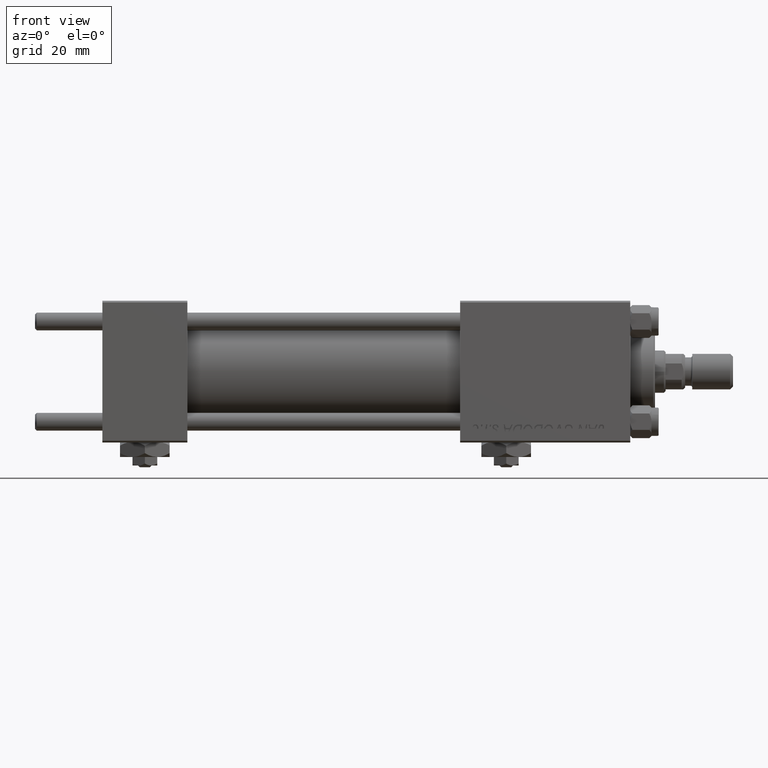
[diagram: clean part render]
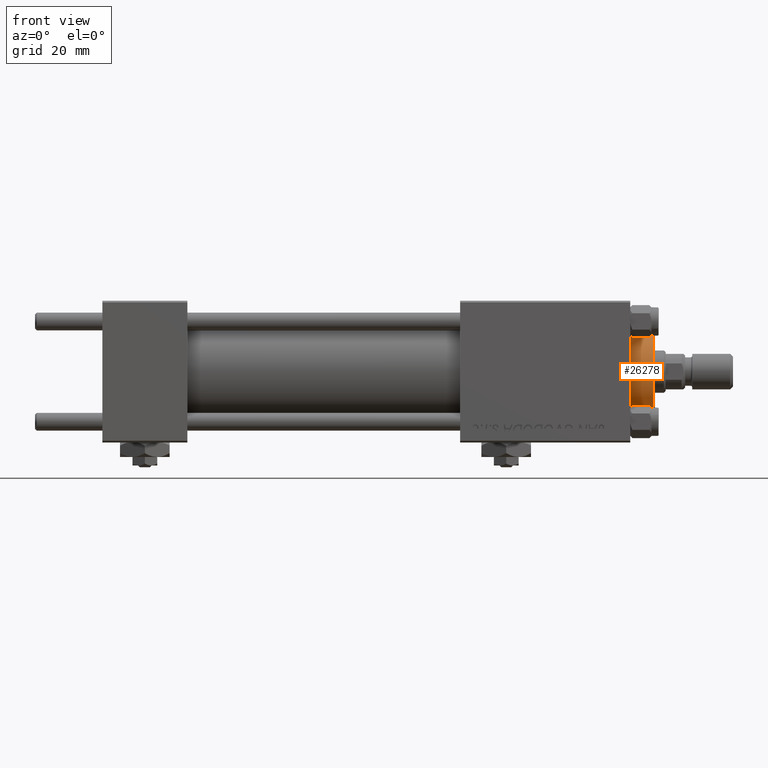
[diagram: same view with one face highlighted and labeled with its STEP entity id]
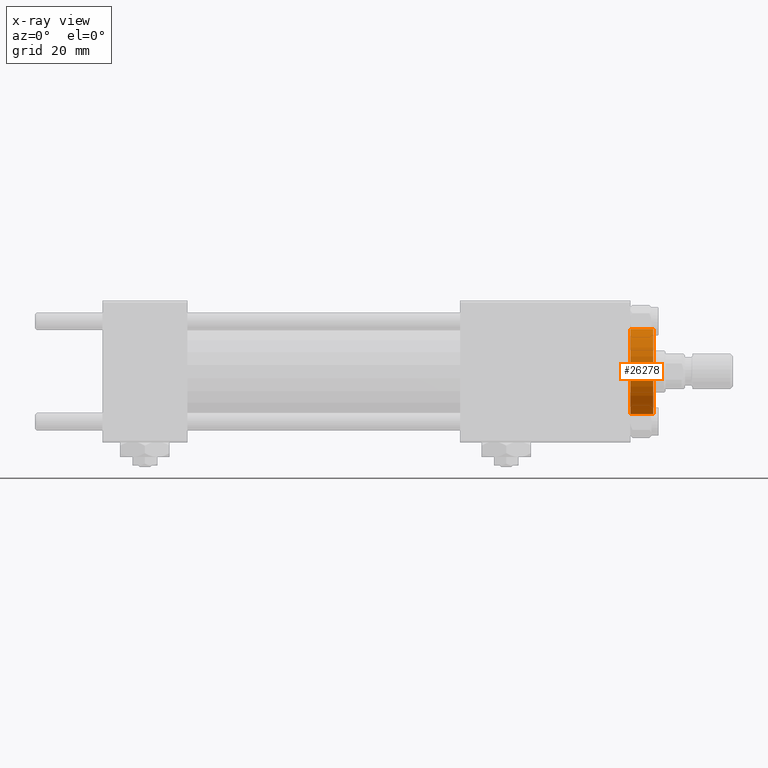
[diagram: x-ray of the same camera — body ghosted, the highlighted face saturated]
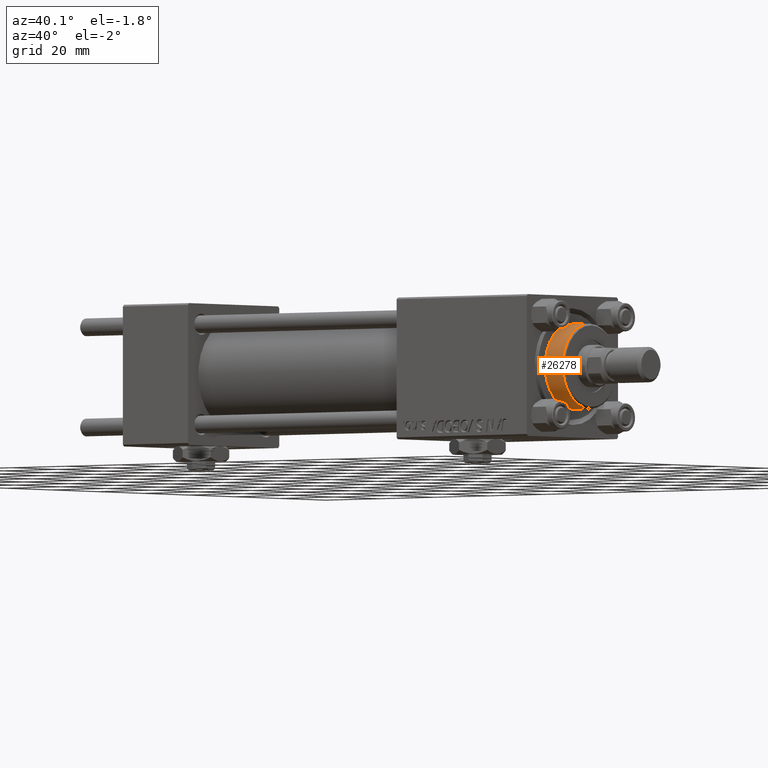
[diagram: same view with one face highlighted and labeled with its STEP entity id]
A machine part, front view. The second image highlights one B-rep face of the part: STEP entity #26278.
The next image is the same camera in x-ray: the body ghosted, the highlighted face saturated — about 0% of this face is hidden behind the body in this view.
A second angle (auxiliary view) of the same face is appended — the face is thin or edge-on in the first view.
In plain terms, the highlighted cylindrical surface (partial cylindrical patch) has radius 12 mm, axis along (-1, -0, 0).
Its self-contained STEP definition (entity closure, byte-faithful):
#1590 = CARTESIAN_POINT ( 'NONE',  ( 0.000000000000000000, 0.000000000000000000, 35.19999999999999574 ) ) ;
#2120 = VERTEX_POINT ( 'NONE', #27552 ) ;
#4047 = DIRECTION ( 'NONE',  ( 1.000000000000000000, 0.000000000000000000, 0.000000000000000000 ) ) ;
#5297 = DIRECTION ( 'NONE',  ( 0.000000000000000000, 0.000000000000000000, -1.000000000000000000 ) ) ;
#5388 = DIRECTION ( 'NONE',  ( -1.000000000000000000, 0.000000000000000000, 0.000000000000000000 ) ) ;
#6075 = DIRECTION ( 'NONE',  ( 1.000000000000000000, 0.000000000000000000, 0.000000000000000000 ) ) ;
#6816 = VECTOR ( 'NONE', #47440, 1000.000000000000000 ) ;
#7691 = AXIS2_PLACEMENT_3D ( 'NONE', #32569, #15929, #4047 ) ;
#9608 = AXIS2_PLACEMENT_3D ( 'NONE', #28912, #49510, #5388 ) ;
#10419 = DIRECTION ( 'NONE',  ( -0.000000000000000000, -0.000000000000000000, -1.000000000000000000 ) ) ;
#13827 = ORIENTED_EDGE ( 'NONE', *, *, #46648, .T. ) ;
#13930 = VERTEX_POINT ( 'NONE', #21464 ) ;
#14297 = EDGE_CURVE ( 'NONE', #24934, #13930, #28018, .T. ) ;
#15929 = DIRECTION ( 'NONE',  ( 0.000000000000000000, 0.000000000000000000, 1.000000000000000000 ) ) ;
#16232 = ORIENTED_EDGE ( 'NONE', *, *, #41120, .T. ) ;
#21236 = FACE_OUTER_BOUND ( 'NONE', #49833, .T. ) ;
#21464 = CARTESIAN_POINT ( 'NONE',  ( -12.00000000000000178, 0.000000000000000000, 35.19999999999999574 ) ) ;
#24092 = CARTESIAN_POINT ( 'NONE',  ( -12.00000000000000178, 0.000000000000000000, 28.69999999999999929 ) ) ;
#24934 = VERTEX_POINT ( 'NONE', #40659 ) ;
#26278 = ADVANCED_FACE ( 'NONE', ( #21236 ), #29422, .T. ) ;
#27062 = CIRCLE ( 'NONE', #7691, 12.00000000000000178 ) ;
#27092 = CARTESIAN_POINT ( 'NONE',  ( 12.00000000000000178, 1.469576158976824144E-15, 35.70000000000000284 ) ) ;
#27552 = CARTESIAN_POINT ( 'NONE',  ( 12.00000000000000178, 1.469576158976824144E-15, 28.69999999999999929 ) ) ;
#28018 = CIRCLE ( 'NONE', #37277, 12.00000000000000178 ) ;
#28568 = VECTOR ( 'NONE', #10419, 1000.000000000000000 ) ;
#28912 = CARTESIAN_POINT ( 'NONE',  ( 0.000000000000000000, 0.000000000000000000, 35.70000000000000284 ) ) ;
#29422 = CYLINDRICAL_SURFACE ( 'NONE', #9608, 12.00000000000000178 ) ;
#30490 = CARTESIAN_POINT ( 'NONE',  ( -12.00000000000000178, 0.000000000000000000, 35.70000000000000284 ) ) ;
#31969 = ORIENTED_EDGE ( 'NONE', *, *, #45914, .F. ) ;
#32569 = CARTESIAN_POINT ( 'NONE',  ( 0.000000000000000000, 0.000000000000000000, 28.69999999999999929 ) ) ;
#33564 = VERTEX_POINT ( 'NONE', #24092 ) ;
#35009 = ORIENTED_EDGE ( 'NONE', *, *, #14297, .T. ) ;
#37277 = AXIS2_PLACEMENT_3D ( 'NONE', #1590, #5297, #6075 ) ;
#40659 = CARTESIAN_POINT ( 'NONE',  ( 12.00000000000000178, 1.469576158976824144E-15, 35.19999999999999574 ) ) ;
#41120 = EDGE_CURVE ( 'NONE', #13930, #33564, #42900, .T. ) ;
#42900 = LINE ( 'NONE', #30490, #28568 ) ;
#45914 = EDGE_CURVE ( 'NONE', #24934, #2120, #45922, .T. ) ;
#45922 = LINE ( 'NONE', #27092, #6816 ) ;
#46648 = EDGE_CURVE ( 'NONE', #33564, #2120, #27062, .T. ) ;
#47440 = DIRECTION ( 'NONE',  ( -0.000000000000000000, -0.000000000000000000, -1.000000000000000000 ) ) ;
#49510 = DIRECTION ( 'NONE',  ( -0.000000000000000000, -0.000000000000000000, -1.000000000000000000 ) ) ;
#49833 = EDGE_LOOP ( 'NONE', ( #31969, #35009, #16232, #13827 ) ) ;